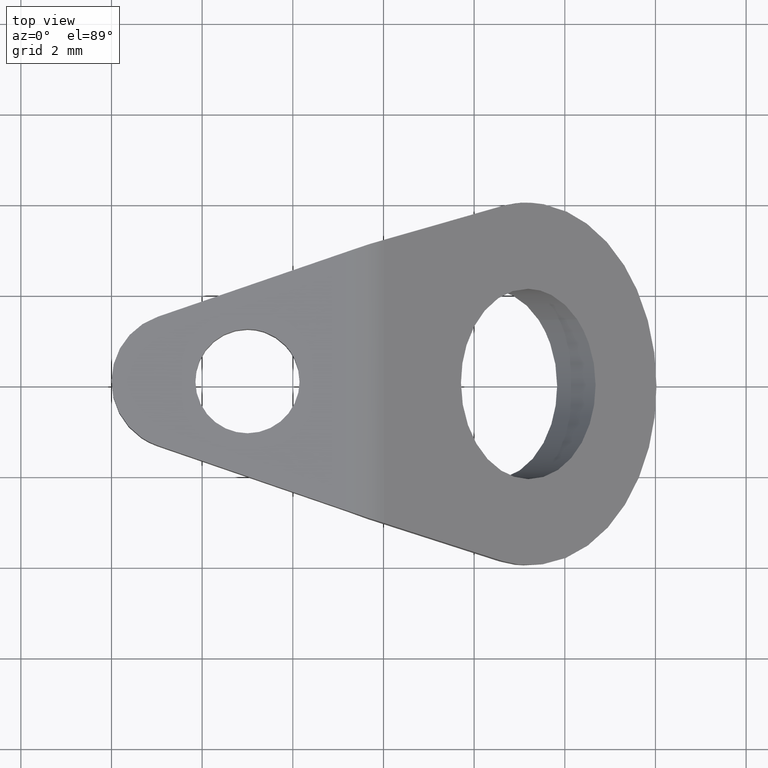
[diagram: clean part render]
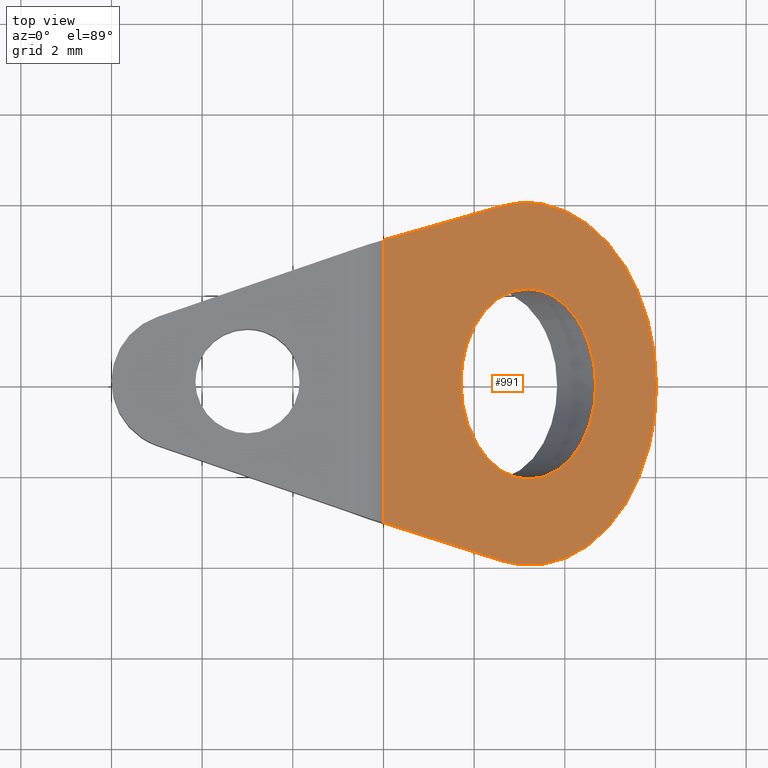
[diagram: same view with one face highlighted and labeled with its STEP entity id]
A machine part, top view. The second image highlights one B-rep face of the part: STEP entity #991.
In plain terms, the highlighted face is a freeform B-spline surface patch.
Its self-contained STEP definition (entity closure, byte-faithful):
#70=CARTESIAN_POINT('',(8.235591850579276,1.603466874816024,-2.574574850578886));
#71=VERTEX_POINT('',#70);
#72=CARTESIAN_POINT('',(7.709545634762106,0.0,-2.048528634762103));
#73=VERTEX_POINT('',#72);
#74=CARTESIAN_POINT('',(8.235591850579276,1.603466874816024,-2.574574850578886));
#75=CARTESIAN_POINT('',(8.161190777080430,1.514504723160607,-2.500173777080034));
#76=CARTESIAN_POINT('',(8.022489445019129,1.312338555741484,-2.361472445018837));
#77=CARTESIAN_POINT('',(7.885774692613977,1.010811323547680,-2.224757692613713));
#78=CARTESIAN_POINT('',(7.792386567148917,0.710221652749952,-2.131369567148745));
#79=CARTESIAN_POINT('',(7.727744384370150,0.394349469053124,-2.066727384370044));
#80=CARTESIAN_POINT('',(7.709532602771550,0.142538693309578,-2.048515602771512));
#81=CARTESIAN_POINT('',(7.709545634762106,0.0,-2.048528634762103));
#82=B_SPLINE_CURVE_WITH_KNOTS('',3,(#74,#75,#76,#77,#78,#79,#80,#81),.UNSPECIFIED.,.F.,.U.,(4,1,1,1,1,4),(2.487990E-009,0.413360044527610,0.840976734533498,1.069033445555598,1.396872883211878,1.824486921323642),.UNSPECIFIED.);
#83=EDGE_CURVE('',#71,#73,#82,.T.);
#85=CARTESIAN_POINT('',(9.194469978401203,-2.099999999999995,-3.533452978401214));
#86=VERTEX_POINT('',#85);
#87=CARTESIAN_POINT('',(7.709545634762106,0.0,-2.048528634762103));
#88=CARTESIAN_POINT('',(7.709538398902344,-0.120264831668207,-2.048521398902351));
#89=CARTESIAN_POINT('',(7.720796617855702,-0.304951845444934,-2.059779617855673));
#90=CARTESIAN_POINT('',(7.762192829964481,-0.569431097418228,-2.101175829964511));
#91=CARTESIAN_POINT('',(7.826346458842284,-0.838566660710046,-2.165329458842231));
#92=CARTESIAN_POINT('',(7.925282849521534,-1.106222747317929,-2.264265849521594));
#93=CARTESIAN_POINT('',(8.057039654636350,-1.359060716322175,-2.396022654636314));
#94=CARTESIAN_POINT('',(8.204468827482131,-1.576722848847166,-2.543451827482146));
#95=CARTESIAN_POINT('',(8.381564473952622,-1.767279823225377,-2.720547473952618));
#96=CARTESIAN_POINT('',(8.558168508314040,-1.902742483442018,-2.897151508314042));
#97=CARTESIAN_POINT('',(8.730395790683653,-2.000147480384638,-3.069378790683730));
#98=CARTESIAN_POINT('',(8.936317509637181,-2.077864507322108,-3.275300509636864));
#99=CARTESIAN_POINT('',(9.100318544920182,-2.100016217996333,-3.439301544920704));
#100=CARTESIAN_POINT('',(9.194469978401203,-2.099999999999995,-3.533452978401214));
#101=B_SPLINE_CURVE_WITH_KNOTS('',3,(#87,#88,#89,#90,#91,#92,#93,#94,#95,#96,#97,#98,#99,#100),.UNSPECIFIED.,.F.,.U.,(4,1,1,1,1,1,1,1,1,1,1,4),(7.582081E-009,0.360792370228504,0.554074785653236,0.811783956235695,1.211233635660779,1.456060530259222,1.752422064158335,2.113214337203881,2.396694927394311,2.602862823510170,2.899229147982377,3.298677543145065),.UNSPECIFIED.);
#102=EDGE_CURVE('',#73,#86,#101,.T.);
#104=CARTESIAN_POINT('',(10.679394115745589,0.0,-5.018377115745617));
#105=VERTEX_POINT('',#104);
#106=CARTESIAN_POINT('',(9.194469978401203,-2.099999999999995,-3.533452978401214));
#107=CARTESIAN_POINT('',(9.306845758161952,-2.100032790741961,-3.645828758161930));
#108=CARTESIAN_POINT('',(9.464765410795664,-2.074523812759697,-3.803748410795694));
#109=CARTESIAN_POINT('',(9.672631876377716,-1.992187468495994,-4.011614876377710));
#110=CARTESIAN_POINT('',(9.833842202994076,-1.901828116364691,-4.172825202994100));
#111=CARTESIAN_POINT('',(10.030901080153820,-1.747344402248964,-4.369884080153800));
#112=CARTESIAN_POINT('',(10.195302071229831,-1.561267788859293,-4.534285071229948));
#113=CARTESIAN_POINT('',(10.334828520580331,-1.351428215622085,-4.673811520580298));
#114=CARTESIAN_POINT('',(10.450463134271709,-1.135136794265031,-4.789446134271772));
#115=CARTESIAN_POINT('',(10.571115244958310,-0.820619489998859,-4.910098244958249));
#116=CARTESIAN_POINT('',(10.658718345450559,-0.429509306367219,-4.997701345450767));
#117=CARTESIAN_POINT('',(10.679406001826161,-0.141740013038311,-5.018389001825988));
#118=CARTESIAN_POINT('',(10.679394115745589,0.0,-5.018377115745617));
#119=B_SPLINE_CURVE_WITH_KNOTS('',3,(#106,#107,#108,#109,#110,#111,#112,#113,#114,#115,#116,#117,#118),.UNSPECIFIED.,.F.,.U.,(4,1,1,1,1,1,1,1,1,1,4),(7.598997E-009,0.476759911510880,0.670042906223387,0.914867662535065,1.211233575260287,1.623571457963656,1.803960035924908,2.074556670775828,2.435351515944622,2.873459400955098,3.298677378712634),.UNSPECIFIED.);
#120=EDGE_CURVE('',#86,#105,#119,.T.);
#122=CARTESIAN_POINT('',(10.271595845243260,1.445544581322798,-4.610578845243389));
#123=VERTEX_POINT('',#122);
#124=CARTESIAN_POINT('',(10.679394115745589,0.0,-5.018377115745617));
#125=CARTESIAN_POINT('',(10.679400529300370,0.116255963147304,-5.018383529300388));
#126=CARTESIAN_POINT('',(10.668637848620040,0.298939148180217,-5.007620848620103));
#127=CARTESIAN_POINT('',(10.627529968073731,0.567047885799257,-4.966512968073776));
#128=CARTESIAN_POINT('',(10.573786893380820,0.791705890627073,-4.912769893380942));
#129=CARTESIAN_POINT('',(10.493571030231070,1.027862451708076,-4.832554030231159));
#130=CARTESIAN_POINT('',(10.395224891665761,1.245129914920170,-4.734207891665847));
#131=CARTESIAN_POINT('',(10.314036427946069,1.382299786861843,-4.653019427946239));
#132=CARTESIAN_POINT('',(10.271595845243260,1.445544581322798,-4.610578845243389));
#133=B_SPLINE_CURVE_WITH_KNOTS('',3,(#124,#125,#126,#127,#128,#129,#130,#131,#132),.UNSPECIFIED.,.F.,.U.,(4,1,1,1,1,1,4),(1.771968E-009,0.348766111889521,0.548061499109338,0.822090749787015,1.058754222154444,1.332786666858352,1.594360591462540),.UNSPECIFIED.);
#134=EDGE_CURVE('',#105,#123,#133,.T.);
#230=CARTESIAN_POINT('',(9.194469772106512,2.099999999999995,-3.533452772106522));
#231=VERTEX_POINT('',#230);
#232=CARTESIAN_POINT('',(9.194469772106512,2.099999999999995,-3.533452772106522));
#233=CARTESIAN_POINT('',(9.066879292262605,2.100056053855538,-3.405862292262545));
#234=CARTESIAN_POINT('',(8.847016053984845,2.059662648529355,-3.185999053984734));
#235=CARTESIAN_POINT('',(8.590998657658798,1.927081717747472,-2.929981657658548));
#236=CARTESIAN_POINT('',(8.397388278274454,1.778788508760363,-2.736371278274129));
#237=CARTESIAN_POINT('',(8.293626167466236,1.672884656095484,-2.632609167465882));
#238=CARTESIAN_POINT('',(8.235591850579276,1.603466874816024,-2.574574850578886));
#239=B_SPLINE_CURVE_WITH_KNOTS('',3,(#232,#233,#234,#235,#236,#237,#238),.UNSPECIFIED.,.F.,.U.,(4,1,1,1,4),(1.447692E-009,0.541305286131632,0.932885312346121,1.151711643646799,1.474190597031978),.UNSPECIFIED.);
#240=EDGE_CURVE('',#231,#71,#239,.T.);
#268=CARTESIAN_POINT('',(10.271595845243260,1.445544581322798,-4.610578845243389));
#269=CARTESIAN_POINT('',(10.195999765071640,1.558248831821021,-4.534982765071733));
#270=CARTESIAN_POINT('',(10.051142291953610,1.730944371487500,-4.390125291953767));
#271=CARTESIAN_POINT('',(9.809408547955144,1.922356886032685,-4.148391547955160));
#272=CARTESIAN_POINT('',(9.619465140279223,2.018096273693524,-3.958448140279300));
#273=CARTESIAN_POINT('',(9.411013806665050,2.083624745943762,-3.749996806665094));
#274=CARTESIAN_POINT('',(9.285483291861102,2.100014594720554,-3.624466291861141));
#275=CARTESIAN_POINT('',(9.194469772106512,2.099999999999995,-3.533452772106522));
#276=B_SPLINE_CURVE_WITH_KNOTS('',3,(#268,#269,#270,#271,#272,#273,#274,#275),.UNSPECIFIED.,.F.,.U.,(4,1,1,1,1,4),(2.172594E-009,0.466024286069416,0.798900981733146,1.171717897145276,1.318182786975217,1.704317003983862),.UNSPECIFIED.);
#277=EDGE_CURVE('',#123,#231,#276,.T.);
#554=CARTESIAN_POINT('',(8.983079645932691,3.988812898832820,-3.322062645932695));
#555=VERTEX_POINT('',#554);
#599=CARTESIAN_POINT('',(8.599953138939620,3.910639295624786,-2.938936138939625));
#600=VERTEX_POINT('',#599);
#606=CARTESIAN_POINT('',(8.983079645932691,3.988812898832820,-3.322062645932695));
#607=CARTESIAN_POINT('',(8.854308363504918,3.975167664932913,-3.193291363504920));
#608=CARTESIAN_POINT('',(8.726199767288719,3.949031014437229,-3.065182767288719));
#609=CARTESIAN_POINT('',(8.599953138939620,3.910639295624786,-2.938936138939625));
#610=B_SPLINE_CURVE_WITH_KNOTS('',3,(#606,#607,#608,#609),.UNSPECIFIED.,.F.,.U.,(4,4),(3.625777E-011,0.547861609010299),.UNSPECIFIED.);
#611=EDGE_CURVE('',#555,#600,#610,.T.);
#694=CARTESIAN_POINT('',(6.012488862576170,-3.123918403910605,-0.351471862576148));
#695=VERTEX_POINT('',#694);
#704=CARTESIAN_POINT('',(6.012488862576170,3.123918403910595,-0.351471862576149));
#705=VERTEX_POINT('',#704);
#706=CARTESIAN_POINT('',(6.012488862576170,3.123918403910595,-0.351471862576149));
#707=CARTESIAN_POINT('',(6.012488862576170,-3.123918403910605,-0.351471862576148));
#708=QUASI_UNIFORM_CURVE('',1,(#706,#707),.UNSPECIFIED.,.F.,.U.);
#709=EDGE_CURVE('',#705,#695,#708,.T.);
#808=CARTESIAN_POINT('',(8.983079645932680,-3.988812898832820,-3.322062645932690));
#809=VERTEX_POINT('',#808);
#868=CARTESIAN_POINT('',(8.599953138939581,-3.910639295624770,-2.938936138939585));
#869=VERTEX_POINT('',#868);
#870=CARTESIAN_POINT('',(8.599953138939581,-3.910639295624770,-2.938936138939585));
#871=CARTESIAN_POINT('',(8.726199825210703,-3.949030309019092,-3.065182825210739));
#872=CARTESIAN_POINT('',(8.854308272018919,-3.975168590925366,-3.193291272018891));
#873=CARTESIAN_POINT('',(8.983079645932680,-3.988812898832820,-3.322062645932690));
#874=B_SPLINE_CURVE_WITH_KNOTS('',3,(#870,#871,#872,#873),.UNSPECIFIED.,.F.,.U.,(4,4),(3.659262E-011,0.547861609010345),.UNSPECIFIED.);
#875=EDGE_CURVE('',#869,#809,#874,.T.);
#893=CARTESIAN_POINT('',(8.599953138939620,3.910639295624786,-2.938936138939625));
#894=CARTESIAN_POINT('',(6.012488862576170,3.123918403910595,-0.351471862576149));
#895=QUASI_UNIFORM_CURVE('',1,(#893,#894),.UNSPECIFIED.,.F.,.U.);
#896=EDGE_CURVE('',#600,#705,#895,.T.);
#922=CARTESIAN_POINT('',(6.012488862576170,-3.123918403910605,-0.351471862576148));
#923=CARTESIAN_POINT('',(8.599953138939581,-3.910639295624770,-2.938936138939585));
#924=QUASI_UNIFORM_CURVE('',1,(#922,#923),.UNSPECIFIED.,.F.,.U.);
#925=EDGE_CURVE('',#695,#869,#924,.T.);
#932=CARTESIAN_POINT('',(5.712269009234587,-4.398723616295873,-0.051252009234558));
#933=CARTESIAN_POINT('',(12.323116584655430,-4.398723616295873,-6.662099584655467));
#934=CARTESIAN_POINT('',(5.712269009234587,4.398724617743093,-0.051252009234558));
#935=CARTESIAN_POINT('',(12.323116584655430,4.398724617743093,-6.662099584655467));
#936=B_SPLINE_SURFACE_WITH_KNOTS('',1,1,((#932,#934),(#933,#935)),.UNSPECIFIED.,.F.,.F.,.U.,(2,2),(2,2),(0.0,9.349150299941496),(0.0,8.797448234038967),.UNSPECIFIED.);
#937=ORIENTED_EDGE('',*,*,#896,.T.);
#938=ORIENTED_EDGE('',*,*,#709,.T.);
#939=ORIENTED_EDGE('',*,*,#925,.T.);
#940=ORIENTED_EDGE('',*,*,#875,.T.);
#941=CARTESIAN_POINT('',(12.022897000000020,0.000000156767025,-6.361880000000061));
#942=VERTEX_POINT('',#941);
#943=CARTESIAN_POINT('',(8.983079645932680,-3.988812898832820,-3.322062645932690));
#944=CARTESIAN_POINT('',(9.103949748826274,-4.001629538199377,-3.442932748826284));
#945=CARTESIAN_POINT('',(9.322566075899351,-4.004873521391062,-3.661549075899361));
#946=CARTESIAN_POINT('',(9.696738328492568,-3.949025979205954,-4.035721328492600));
#947=CARTESIAN_POINT('',(10.045258238135499,-3.828319032125517,-4.384241238135477));
#948=CARTESIAN_POINT('',(10.394952271924931,-3.631709759503123,-4.733935271924976));
#949=CARTESIAN_POINT('',(10.705002384609269,-3.395531720435257,-5.043985384609281));
#950=CARTESIAN_POINT('',(10.980750768106001,-3.113668664172686,-5.319733768106028));
#951=CARTESIAN_POINT('',(11.208261059586080,-2.817037329651222,-5.547244059586191));
#952=CARTESIAN_POINT('',(11.399003708967919,-2.517314256630896,-5.737986708967810));
#953=CARTESIAN_POINT('',(11.574242865621480,-2.177386834240920,-5.913225865621756));
#954=CARTESIAN_POINT('',(11.754400342374220,-1.729798750513980,-6.093383342373977));
#955=CARTESIAN_POINT('',(11.892818744604760,-1.243185857761432,-6.231801744604849));
#956=CARTESIAN_POINT('',(11.997182875124810,-0.642805750479745,-6.336165875124913));
#957=CARTESIAN_POINT('',(12.022913004893240,-0.239984608196750,-6.361896004893285));
#958=CARTESIAN_POINT('',(12.022897000000020,0.000000156767025,-6.361880000000061));
#959=B_SPLINE_CURVE_WITH_KNOTS('',3,(#943,#944,#945,#946,#947,#948,#949,#950,#951,#952,#953,#954,#955,#956,#957,#958),.UNSPECIFIED.,.F.,.U.,(4,1,1,1,1,1,1,1,1,1,1,1,1,4),(3.082097E-009,0.514248248483895,0.925651377172551,1.594181518973466,2.031296767113363,2.519837978361905,3.085515551778912,3.471197845549648,3.831174799524067,4.294002904217370,4.731118933055438,5.373934759939628,5.862475646335524,6.582426737711740),.UNSPECIFIED.);
#960=EDGE_CURVE('',#809,#942,#959,.T.);
#961=ORIENTED_EDGE('',*,*,#960,.T.);
#962=CARTESIAN_POINT('',(12.022897000000020,0.000000156767025,-6.361880000000061));
#963=CARTESIAN_POINT('',(12.022913713619509,0.239984771821438,-6.361896713619547));
#964=CARTESIAN_POINT('',(11.993900823914570,0.694230088530604,-6.332883823914586));
#965=CARTESIAN_POINT('',(11.873398236098931,1.334012581080903,-6.212381236099009));
#966=CARTESIAN_POINT('',(11.683474116260699,1.938995952955956,-6.022457116260660));
#967=CARTESIAN_POINT('',(11.448275904257100,2.441231173772740,-5.787258904257216));
#968=CARTESIAN_POINT('',(11.184297629945229,2.856007356017380,-5.523280629945140));
#969=CARTESIAN_POINT('',(10.937596662664500,3.161428935687701,-5.276579662664529));
#970=CARTESIAN_POINT('',(10.617740573078891,3.473158586042198,-4.956723573078927));
#971=CARTESIAN_POINT('',(10.263101946691490,3.720849381410615,-4.602084946691504));
#972=CARTESIAN_POINT('',(9.909675845167742,3.877879329617031,-4.248658845167746));
#973=CARTESIAN_POINT('',(9.600440333181624,3.965799857001405,-3.939423333181641));
#974=CARTESIAN_POINT('',(9.304278602240018,4.005933919208293,-3.643261602240025));
#975=CARTESIAN_POINT('',(9.085819164255685,3.999705390578736,-3.424802164255688));
#976=CARTESIAN_POINT('',(8.983079645932691,3.988812898832820,-3.322062645932695));
#977=B_SPLINE_CURVE_WITH_KNOTS('',3,(#962,#963,#964,#965,#966,#967,#968,#969,#970,#971,#972,#973,#974,#975,#976),.UNSPECIFIED.,.F.,.U.,(4,1,1,1,1,1,1,1,1,1,1,1,4),(3.107395E-009,0.719949748256330,1.362767338340143,1.979870681851055,2.699826965884260,3.162655191655241,3.651185426540887,4.088301131638783,4.808256572372898,5.322510059264352,5.656774595721040,6.145315876762709,6.582426424176006),.UNSPECIFIED.);
#978=EDGE_CURVE('',#942,#555,#977,.T.);
#979=ORIENTED_EDGE('',*,*,#978,.T.);
#980=ORIENTED_EDGE('',*,*,#611,.T.);
#981=EDGE_LOOP('',(#937,#938,#939,#940,#961,#979,#980));
#982=FACE_OUTER_BOUND('',#981,.T.);
#983=ORIENTED_EDGE('',*,*,#102,.F.);
#984=ORIENTED_EDGE('',*,*,#83,.F.);
#985=ORIENTED_EDGE('',*,*,#240,.F.);
#986=ORIENTED_EDGE('',*,*,#277,.F.);
#987=ORIENTED_EDGE('',*,*,#134,.F.);
#988=ORIENTED_EDGE('',*,*,#120,.F.);
#989=EDGE_LOOP('',(#983,#984,#985,#986,#987,#988));
#990=FACE_BOUND('',#989,.T.);
#991=ADVANCED_FACE('',(#982,#990),#936,.T.);